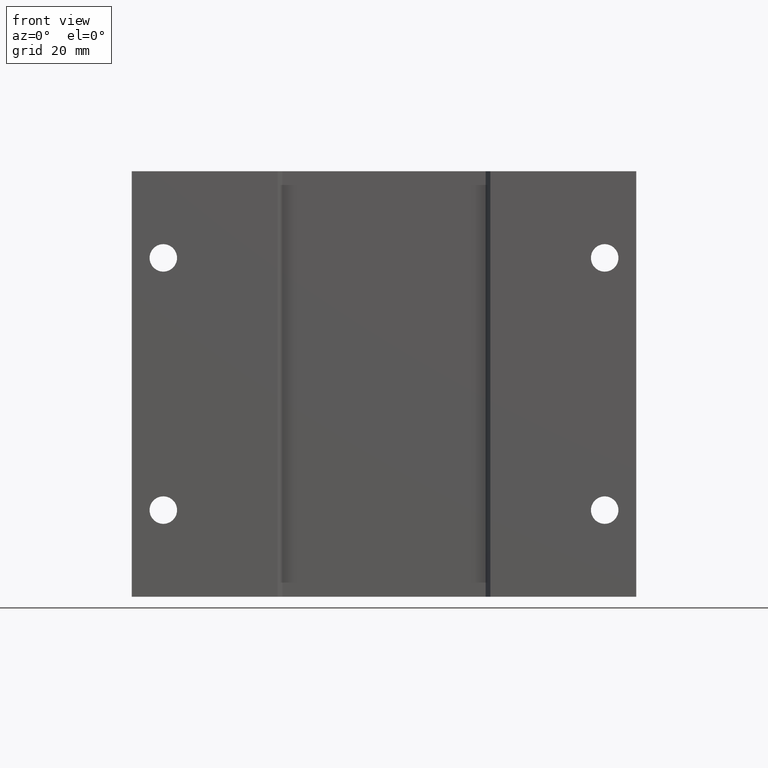
[diagram: clean part render]
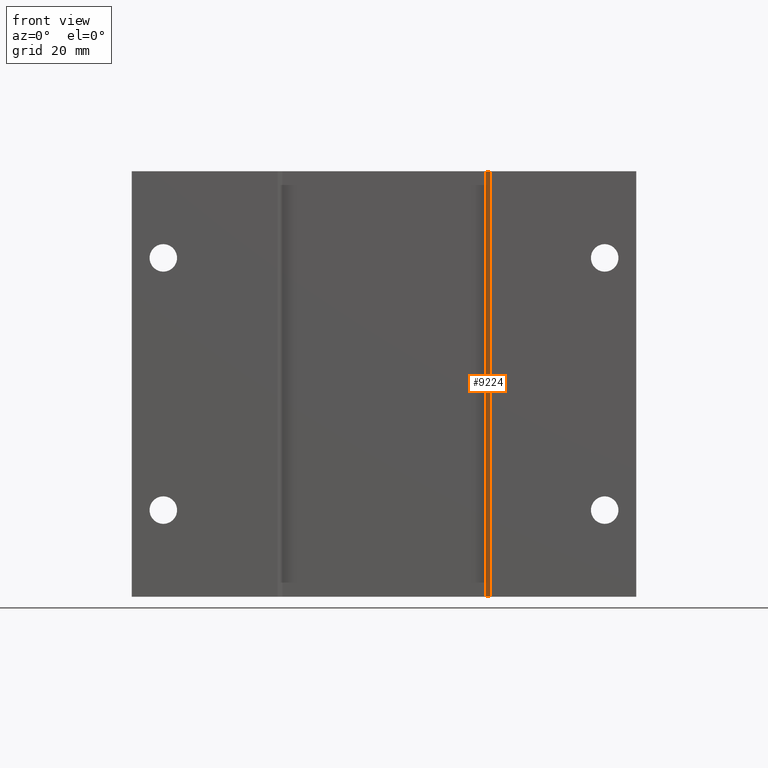
[diagram: same view with one face highlighted and labeled with its STEP entity id]
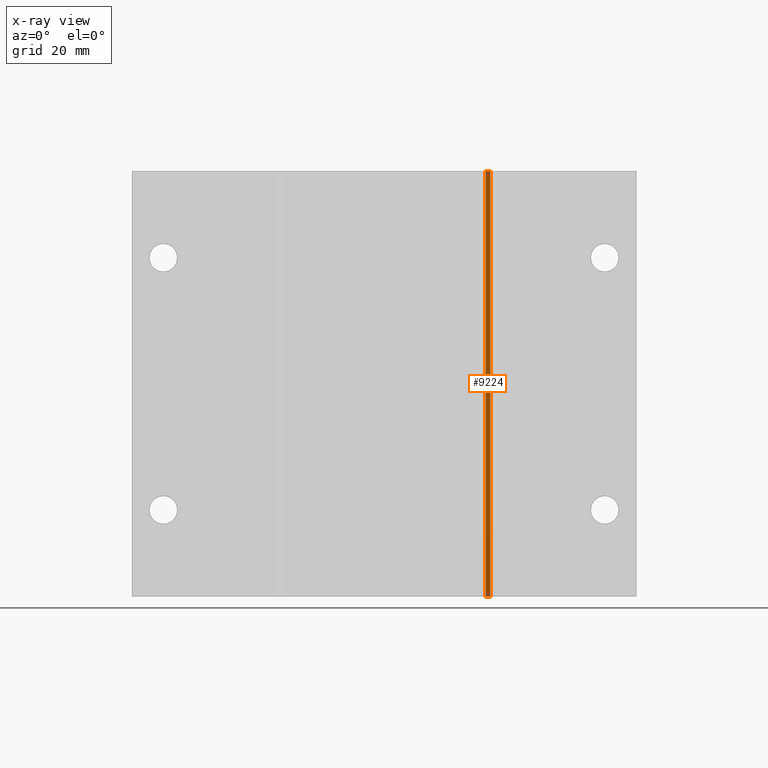
[diagram: x-ray of the same camera — body ghosted, the highlighted face saturated]
A machine part, front view. The second image highlights one B-rep face of the part: STEP entity #9224.
The next image is the same camera in x-ray: the body ghosted, the highlighted face saturated — about 0% of this face is hidden behind the body in this view.
In plain terms, the highlighted planar face has unit normal (0.866, 0.5, 0).
Its self-contained STEP definition (entity closure, byte-faithful):
#384 = DIRECTION ( 'NONE',  ( -0.000000000000000000, -0.000000000000000000, 1.000000000000000000 ) ) ;
#470 = CARTESIAN_POINT ( 'NONE',  ( 0.8434529946162077074, -1.499999999999999778, -1.687501968503936967 ) ) ;
#989 = FACE_OUTER_BOUND ( 'NONE', #1407, .T. ) ;
#1048 = CARTESIAN_POINT ( 'NONE',  ( 0.8059252271188813710, -1.434999999999999609, -1.687501968503936967 ) ) ;
#1378 = DIRECTION ( 'NONE',  ( 0.000000000000000000, 0.000000000000000000, 1.000000000000000000 ) ) ;
#1407 = EDGE_LOOP ( 'NONE', ( #7001, #3359, #4296, #5934 ) ) ;
#1524 = LINE ( 'NONE', #4890, #3464 ) ;
#2039 = VECTOR ( 'NONE', #384, 39.37007874015748143 ) ;
#2143 = CARTESIAN_POINT ( 'NONE',  ( 0.8434529946162077074, -1.499999999999999778, 1.687500000000000000 ) ) ;
#2343 = CARTESIAN_POINT ( 'NONE',  ( -0.01692930687618034863, -0.009774139882156617984, -1.687500000000000000 ) ) ;
#2597 = DIRECTION ( 'NONE',  ( -0.5000000000000041078, 0.8660254037844361541, 0.000000000000000000 ) ) ;
#2617 = VERTEX_POINT ( 'NONE', #5929 ) ;
#2684 = VECTOR ( 'NONE', #1378, 39.37007874015748143 ) ;
#2782 = VECTOR ( 'NONE', #8204, 39.37007874015747433 ) ;
#2865 = AXIS2_PLACEMENT_3D ( 'NONE', #1048, #3519, #2597 ) ;
#3359 = ORIENTED_EDGE ( 'NONE', *, *, #9555, .T. ) ;
#3464 = VECTOR ( 'NONE', #6682, 39.37007874015749564 ) ;
#3519 = DIRECTION ( 'NONE',  ( 0.8660254037844362651, 0.5000000000000042188, 0.000000000000000000 ) ) ;
#4010 = VERTEX_POINT ( 'NONE', #9997 ) ;
#4296 = ORIENTED_EDGE ( 'NONE', *, *, #6687, .T. ) ;
#4631 = LINE ( 'NONE', #470, #2684 ) ;
#4647 = CARTESIAN_POINT ( 'NONE',  ( 0.8059252271188813710, -1.434999999999999609, -1.687501968503936967 ) ) ;
#4890 = CARTESIAN_POINT ( 'NONE',  ( 0.8059252271188813710, -1.434999999999999609, 1.687500000000000000 ) ) ;
#5120 = CARTESIAN_POINT ( 'NONE',  ( 0.8059252271188813710, -1.434999999999999609, -1.687500000000000000 ) ) ;
#5929 = CARTESIAN_POINT ( 'NONE',  ( 0.8059252271188813710, -1.434999999999999609, 1.687500000000000000 ) ) ;
#5934 = ORIENTED_EDGE ( 'NONE', *, *, #6844, .F. ) ;
#6682 = DIRECTION ( 'NONE',  ( -0.5000000000000041078, 0.8660254037844361541, -0.000000000000000000 ) ) ;
#6687 = EDGE_CURVE ( 'NONE', #6991, #2617, #1524, .T. ) ;
#6844 = EDGE_CURVE ( 'NONE', #9192, #2617, #10494, .T. ) ;
#6991 = VERTEX_POINT ( 'NONE', #2143 ) ;
#7001 = ORIENTED_EDGE ( 'NONE', *, *, #7766, .F. ) ;
#7339 = LINE ( 'NONE', #2343, #2782 ) ;
#7748 = PLANE ( 'NONE',  #2865 ) ;
#7766 = EDGE_CURVE ( 'NONE', #4010, #9192, #7339, .T. ) ;
#8204 = DIRECTION ( 'NONE',  ( -0.5000000000000043299, 0.8660254037844362651, -0.000000000000000000 ) ) ;
#9192 = VERTEX_POINT ( 'NONE', #5120 ) ;
#9224 = ADVANCED_FACE ( 'NONE', ( #989 ), #7748, .F. ) ;
#9555 = EDGE_CURVE ( 'NONE', #4010, #6991, #4631, .T. ) ;
#9997 = CARTESIAN_POINT ( 'NONE',  ( 0.8434529946162077074, -1.499999999999999778, -1.687500000000000000 ) ) ;
#10494 = LINE ( 'NONE', #4647, #2039 ) ;